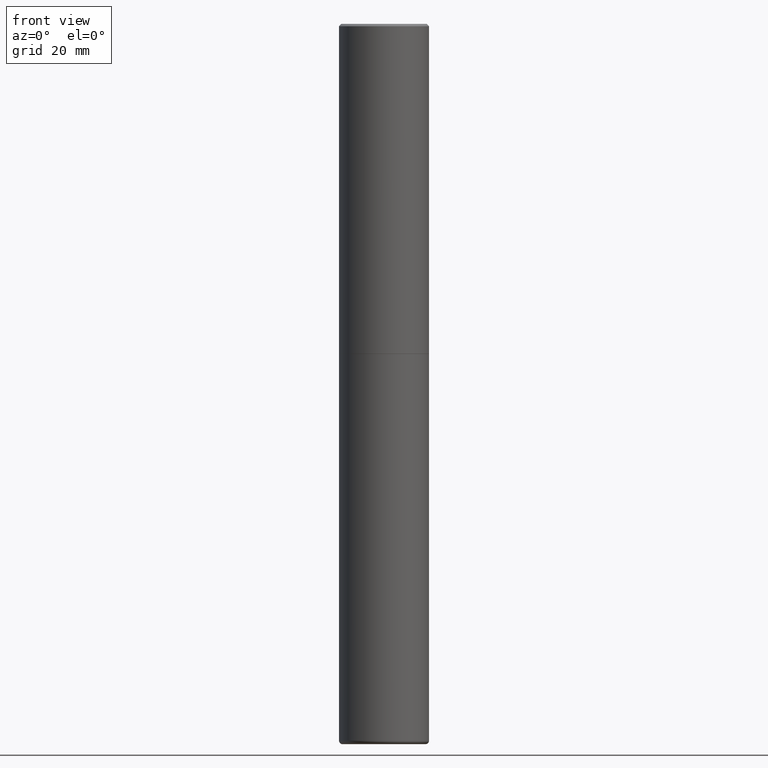
[diagram: clean part render]
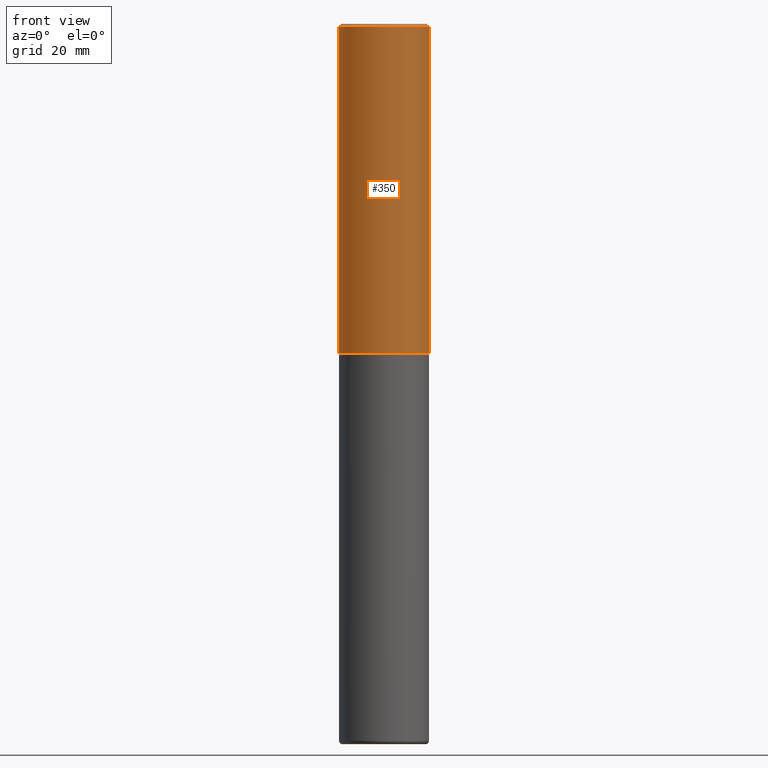
[diagram: same view with one face highlighted and labeled with its STEP entity id]
A machine part, front view. The second image highlights one B-rep face of the part: STEP entity #350.
In plain terms, the highlighted cylindrical surface (partial cylindrical patch) has radius 9.525 mm, axis along (-0, 0, 1).
Its self-contained STEP definition (entity closure, byte-faithful):
#7 = CARTESIAN_POINT ( 'NONE',  ( 0.3750000000000000555, -1.221669320461216002E-14, -2.749000000000000554 ) ) ;
#10 = VERTEX_POINT ( 'NONE', #377 ) ;
#15 = FACE_OUTER_BOUND ( 'NONE', #133, .T. ) ;
#24 = AXIS2_PLACEMENT_3D ( 'NONE', #318, #242, #149 ) ;
#42 = CIRCLE ( 'NONE', #316, 0.3750000000000000555 ) ;
#44 = DIRECTION ( 'NONE',  ( -2.445468806185136877E-29, 3.491481338843145188E-15, 1.000000000000000000 ) ) ;
#55 = CARTESIAN_POINT ( 'NONE',  ( 0.3749999999999996669, -2.642516375941185662E-15, -0.02000000000000007674 ) ) ;
#56 = VECTOR ( 'NONE', #71, 39.37007874015748143 ) ;
#58 = EDGE_CURVE ( 'NONE', #341, #179, #168, .T. ) ;
#65 = ORIENTED_EDGE ( 'NONE', *, *, #58, .T. ) ;
#71 = DIRECTION ( 'NONE',  ( -2.445468806185136877E-29, 3.491481338843145188E-15, 1.000000000000000000 ) ) ;
#72 = CARTESIAN_POINT ( 'NONE',  ( -0.3749999999999996669, 2.548781377355484352E-15, -0.02000000000000007674 ) ) ;
#95 = ORIENTED_EDGE ( 'NONE', *, *, #382, .F. ) ;
#96 = CIRCLE ( 'NONE', #24, 0.3749999999999996669 ) ;
#102 = CARTESIAN_POINT ( 'NONE',  ( 0.3749999999999998335, -2.618611004132348439E-15, 1.828566290923475082E-29 ) ) ;
#104 = AXIS2_PLACEMENT_3D ( 'NONE', #254, #325, #347 ) ;
#106 = DIRECTION ( 'NONE',  ( -2.445468806185136597E-29, 3.491481338843145583E-15, 1.000000000000000000 ) ) ;
#116 = DIRECTION ( 'NONE',  ( 1.000000000000000000, -6.982962677686266711E-15, 0.000000000000000000 ) ) ;
#133 = EDGE_LOOP ( 'NONE', ( #415, #387, #65, #95 ) ) ;
#147 = CARTESIAN_POINT ( 'NONE',  ( -0.3749999999999998335, 2.664535259100374514E-15, -1.844600658845588757E-29 ) ) ;
#149 = DIRECTION ( 'NONE',  ( 1.000000000000000000, -6.982962677686266711E-15, 0.000000000000000000 ) ) ;
#168 = LINE ( 'NONE', #102, #56 ) ;
#179 = VERTEX_POINT ( 'NONE', #55 ) ;
#242 = DIRECTION ( 'NONE',  ( -2.445468806185136597E-29, 3.491481338843145583E-15, 1.000000000000000000 ) ) ;
#254 = CARTESIAN_POINT ( 'NONE',  ( 0.000000000000000000, 0.000000000000000000, 0.000000000000000000 ) ) ;
#287 = CARTESIAN_POINT ( 'NONE',  ( 6.722593748202942280E-29, -9.598082200479810007E-15, -2.749000000000000554 ) ) ;
#293 = LINE ( 'NONE', #147, #428 ) ;
#305 = EDGE_CURVE ( 'NONE', #10, #341, #42, .T. ) ;
#310 = VERTEX_POINT ( 'NONE', #72 ) ;
#316 = AXIS2_PLACEMENT_3D ( 'NONE', #287, #106, #116 ) ;
#318 = CARTESIAN_POINT ( 'NONE',  ( 4.890937612370292426E-31, -6.982962677686317493E-17, -0.02000000000000007674 ) ) ;
#325 = DIRECTION ( 'NONE',  ( -2.445468806185136597E-29, 3.491481338843145583E-15, 1.000000000000000000 ) ) ;
#341 = VERTEX_POINT ( 'NONE', #7 ) ;
#347 = DIRECTION ( 'NONE',  ( 1.000000000000000000, -6.982962677686265922E-15, 4.876176775795935793E-29 ) ) ;
#350 = ADVANCED_FACE ( 'NONE', ( #15 ), #409, .T. ) ;
#377 = CARTESIAN_POINT ( 'NONE',  ( -0.3749999999999999445, -2.169420654527958984E-15, -2.749000000000000554 ) ) ;
#382 = EDGE_CURVE ( 'NONE', #310, #179, #96, .T. ) ;
#387 = ORIENTED_EDGE ( 'NONE', *, *, #305, .T. ) ;
#388 = EDGE_CURVE ( 'NONE', #10, #310, #293, .T. ) ;
#409 = CYLINDRICAL_SURFACE ( 'NONE', #104, 0.3749999999999998335 ) ;
#415 = ORIENTED_EDGE ( 'NONE', *, *, #388, .F. ) ;
#428 = VECTOR ( 'NONE', #44, 39.37007874015748143 ) ;